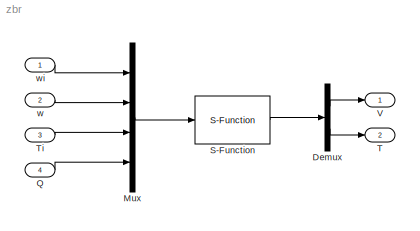
MODEL zbr
KIND model
BLOCK [Demux] Demux
  DisplayOption = bar
  Outputs = 2
  Ports = [1, 2]
  SID = 3
BLOCK [Mux] Mux
  DisplayOption = bar
  Ports = [4, 1]
  SID = 2
BLOCK [Inport] Q
  IconDisplay = Port number
  Port = 4
  SID = 19
BLOCK [S-Function] S-Function
  EnableBusSupport = off
  FunctionName = zbiornik_sfcn
  Parameters = V_0 T_0
  Ports = [1, 1]
  SID = 1
BLOCK [Outport] T
  IconDisplay = Port number
  Port = 2
  SID = 21
BLOCK [Inport] Ti
  IconDisplay = Port number
  Port = 3
  SID = 18
BLOCK [Outport] V
  IconDisplay = Port number
  SID = 20
BLOCK [Inport] w
  IconDisplay = Port number
  Port = 2
  SID = 17
BLOCK [Inport] wi
  IconDisplay = Port number
  SID = 16
LINE Demux:1 -> V:1
LINE Demux:2 -> T:1
LINE Mux:1 -> S-Function:1
LINE Q:1 -> Mux:4
LINE S-Function:1 -> Demux:1
LINE Ti:1 -> Mux:3
LINE w:1 -> Mux:2
LINE wi:1 -> Mux:1
